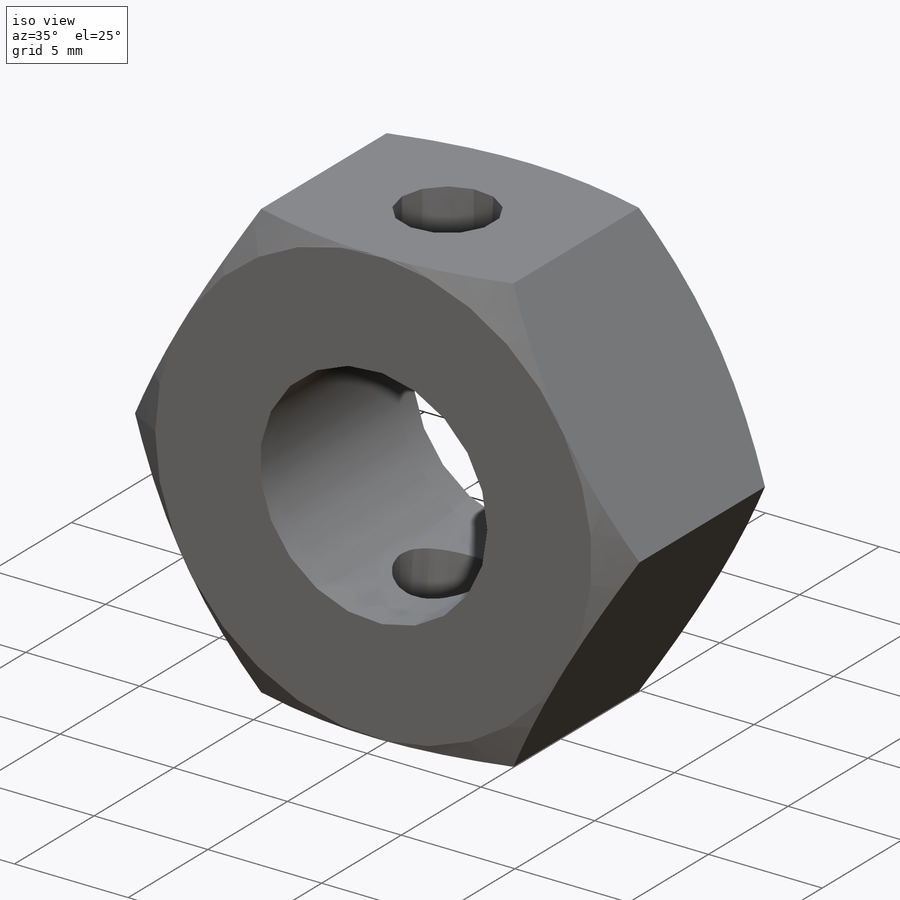
[diagram: iso view]
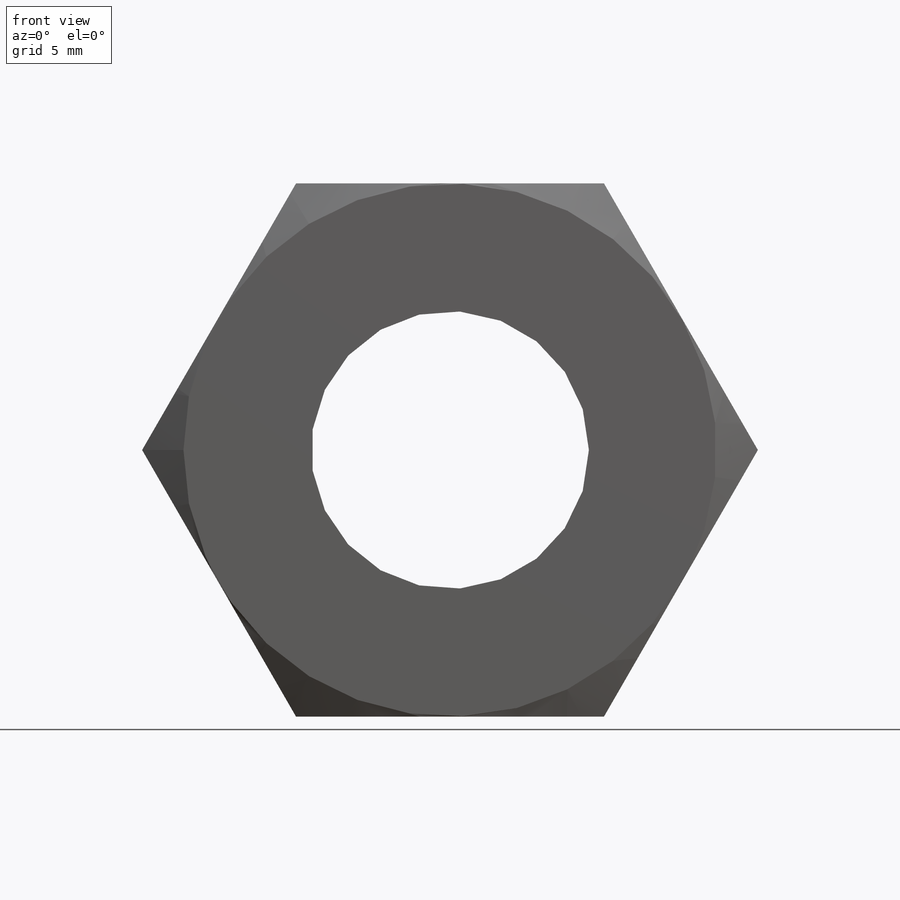
[diagram: front view]
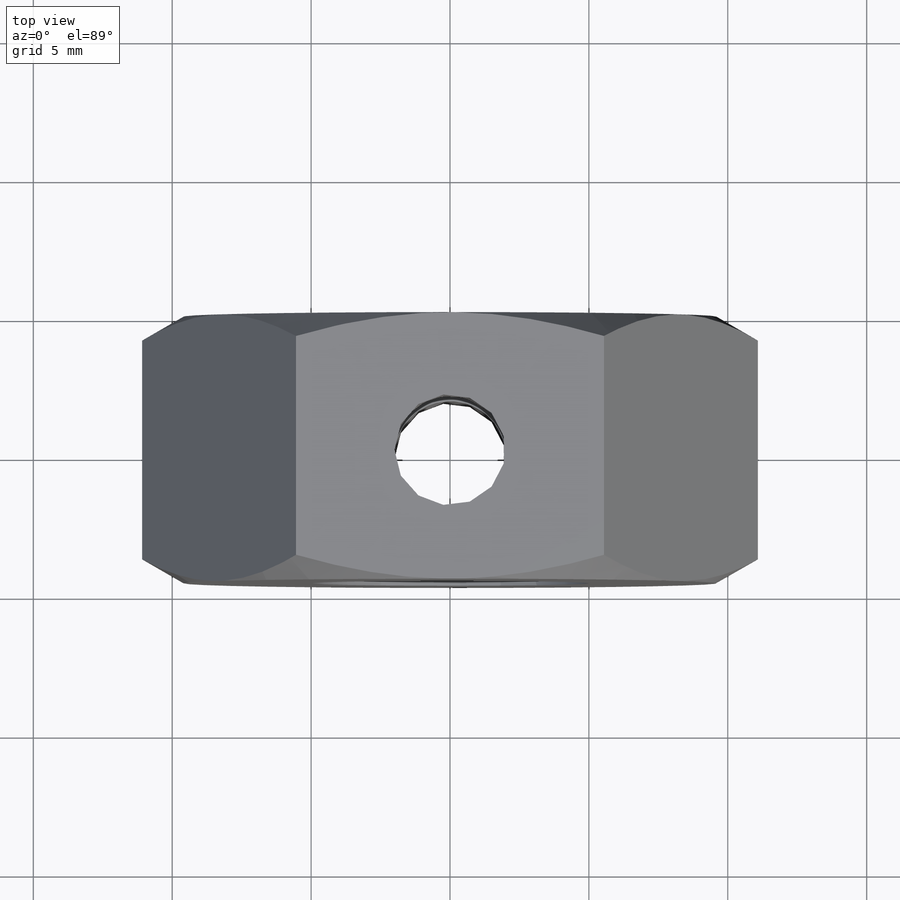
[diagram: top view]
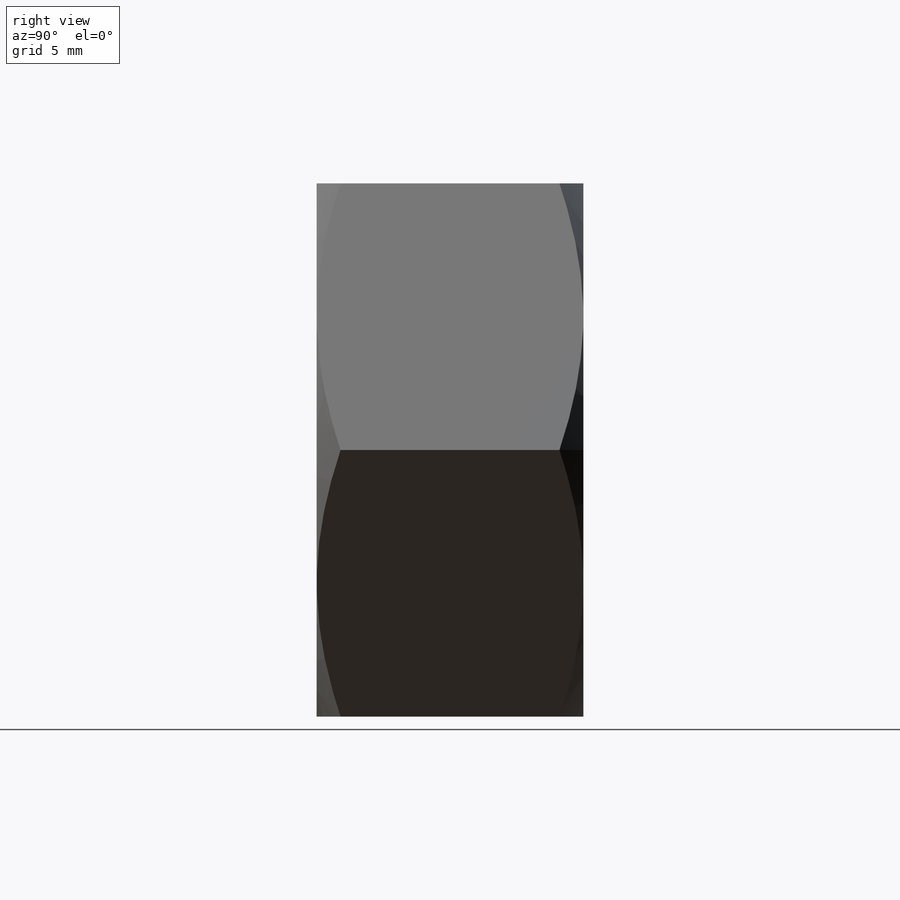
[diagram: right view]
SOLIDWORKS PART (.sldprt)
format: sldprt  version: not decoded by parser v0  size: 152,576 bytes
history: native  units: mm
features: sketch x5, plane x3, extrude x2, cut_extrude x2, material x1, cut_revolve x1 + 1 further entry (+8 scaffold rows collapsed)
feature tree (23):
  scaffold x8  (default folders/planes/origin — collapsed)
  material  "Matériau <non spécifié>"
  "Corps de surface"
  plane  "Plan1"
  plane  "Plan2"
  plane  "Plan3"
  sketch  "Esquisse1"  dims[c1.D1=~58.309519mm c2.D1=60.0deg c2.D2=9.6mm c2.D3=19.2mm]
  extrude  "Base-Extrusion"  Depth=9.6mm
  sketch  "Esquisse2"  dims[D1=10.0mm]
  cut_extrude  "Enlèv. mat.-Extru.1"  [1 undecoded]
  sketch  "Esquisse4"  dims[D1=~5.043051mm]
  cut_extrude  "Enlèv. mat.-Extru.2"  [1 undecoded]
  sketch  "Esquisse6"  dims[c1.D1=~2.68034mm c2.D1=30.0deg c2.D2=0.86mm]
  cut_revolve  "Enlèvement de matière-Révolution2"  Angle=360deg
  sketch  "Esq_WRNL_Compact001"
  extrude  "BEx_WRNL_Compact001"  Depth=1.985867mm
decode coverage: 7 of 10 modeling features carry decoded parameters; 1 rows unclassified (native names shown)
note: ~ marks probable driven/reference dimensions
note: 2 parameter values undecoded
note: suppression state not decoded; provenance and decode notes live in map.json
